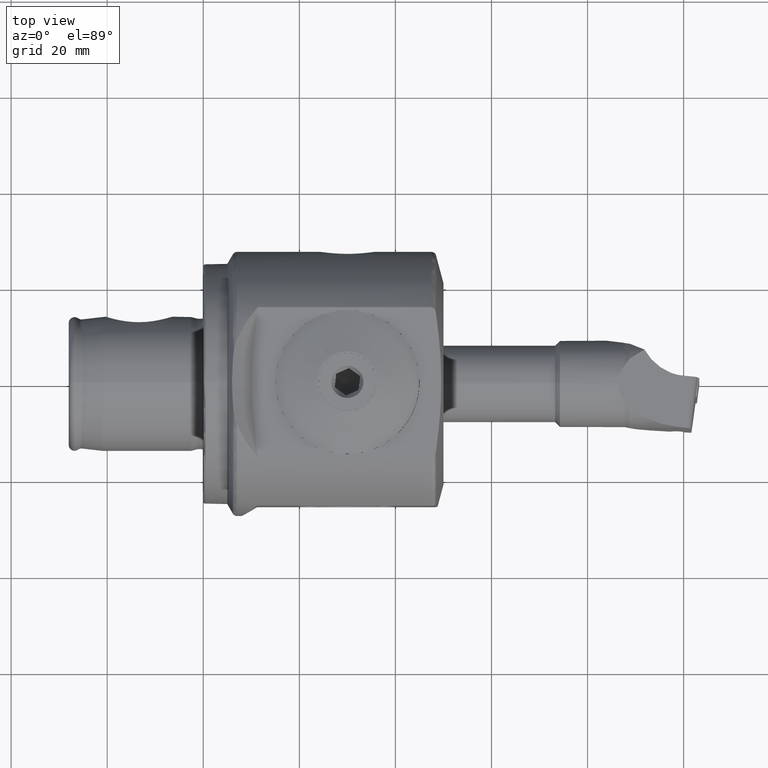
[diagram: clean part render]
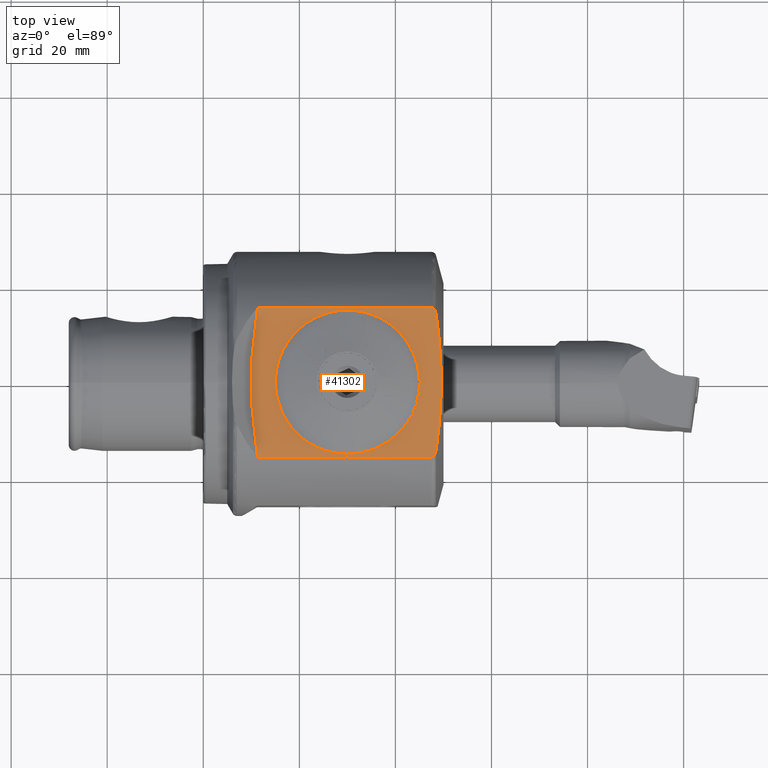
[diagram: same view with one face highlighted and labeled with its STEP entity id]
A machine part, top view. The second image highlights one B-rep face of the part: STEP entity #41302.
In plain terms, the highlighted planar face has unit normal (0, 0, -1).
Its self-contained STEP definition (entity closure, byte-faithful):
#12 = VERTEX_POINT ( 'NONE', #289 ) ;
#154 = CARTESIAN_POINT ( 'NONE',  ( 43.42483683769455600, -6.691319442477644800, 22.64999999999999500 ) ) ;
#231 = LINE ( 'NONE', #24558, #402 ) ;
#289 = CARTESIAN_POINT ( 'NONE',  ( 47.49100326121872900, -15.59575262691737100, 22.64999999999999500 ) ) ;
#402 = VECTOR ( 'NONE', #24324, 1000.000000000000000 ) ;
#465 = DIRECTION ( 'NONE',  ( 0.0000000000000000000, 0.0000000000000000000, 1.000000000000000000 ) ) ;
#491 = VERTEX_POINT ( 'NONE', #41893 ) ;
#503 = ORIENTED_EDGE ( 'NONE', *, *, #22723, .F. ) ;
#654 = VERTEX_POINT ( 'NONE', #18357 ) ;
#671 = CARTESIAN_POINT ( 'NONE',  ( 47.84436095612929300, 15.48563106115336700, 22.65000000000000200 ) ) ;
#692 = ORIENTED_EDGE ( 'NONE', *, *, #23960, .F. ) ;
#861 = ORIENTED_EDGE ( 'NONE', *, *, #28152, .F. ) ;
#1092 = DIRECTION ( 'NONE',  ( 0.9548645447466421700, -0.2970415815770371900, -0.0000000000000000000 ) ) ;
#1128 = CARTESIAN_POINT ( 'NONE',  ( 47.14300556820300200, -5.489978150098639100, 22.64999999999999500 ) ) ;
#1261 = LINE ( 'NONE', #38691, #1391 ) ;
#1391 = VECTOR ( 'NONE', #38531, 1000.000000000000000 ) ;
#1472 = CIRCLE ( 'NONE', #11934, 14.99999999999999600 ) ;
#1535 = CARTESIAN_POINT ( 'NONE',  ( 11.28888806550208700, 15.59575262691737100, 22.64999999999999900 ) ) ;
#1626 = DIRECTION ( 'NONE',  ( -0.7289686274214096700, 0.6845471059286906100, 0.0000000000000000000 ) ) ;
#1776 = CARTESIAN_POINT ( 'NONE',  ( 43.95308598689607700, -12.89704971853190000, 22.64999999999999500 ) ) ;
#1786 = VECTOR ( 'NONE', #36159, 1000.000000000000000 ) ;
#1840 = LINE ( 'NONE', #36530, #1786 ) ;
#2033 = EDGE_CURVE ( 'NONE', #491, #3146, #41501, .T. ) ;
#2149 = VERTEX_POINT ( 'NONE', #15225 ) ;
#2604 = CARTESIAN_POINT ( 'NONE',  ( 105.0000000000000300, 0.0000000000000000000, 22.64999999999999500 ) ) ;
#2765 = CARTESIAN_POINT ( 'NONE',  ( 47.96071895679616400, -15.39236363514097400, 22.64999999999998800 ) ) ;
#3013 = DIRECTION ( 'NONE',  ( -1.000000000000000000, 0.0000000000000000000, 0.0000000000000000000 ) ) ;
#3146 = VERTEX_POINT ( 'NONE', #32489 ) ;
#3692 = DIRECTION ( 'NONE',  ( 0.4371157666508823600, 0.8994052515663956100, 0.0000000000000000000 ) ) ;
#3798 = EDGE_CURVE ( 'NONE', #19159, #33739, #33218, .T. ) ;
#3877 = CIRCLE ( 'NONE', #31917, 14.99999999999999600 ) ;
#3965 = VERTEX_POINT ( 'NONE', #16453 ) ;
#4122 = CARTESIAN_POINT ( 'NONE',  ( 47.64057621404997200, 15.58042764571924700, 22.65000000000000200 ) ) ;
#4318 = LINE ( 'NONE', #1776, #4882 ) ;
#4424 = VERTEX_POINT ( 'NONE', #6962 ) ;
#4582 = VECTOR ( 'NONE', #6583, 1000.000000000000100 ) ;
#4677 = LINE ( 'NONE', #6618, #4582 ) ;
#4725 = CARTESIAN_POINT ( 'NONE',  ( 44.36680824212302100, -4.312171255187546000, 22.64999999999999500 ) ) ;
#4741 = CARTESIAN_POINT ( 'NONE',  ( 47.49100326121872900, 15.59575262691738300, 22.64999999999999500 ) ) ;
#4882 = VECTOR ( 'NONE', #1626, 1000.000000000000000 ) ;
#5102 = CARTESIAN_POINT ( 'NONE',  ( 43.81155581890912000, 15.59575262691737600, 22.64999999999999500 ) ) ;
#5135 = DIRECTION ( 'NONE',  ( 0.0000000000000000000, 0.0000000000000000000, 1.000000000000000000 ) ) ;
#5336 = CARTESIAN_POINT ( 'NONE',  ( 46.12372716319702400, -8.002994587451757600, 22.64999999999999500 ) ) ;
#5797 = EDGE_CURVE ( 'NONE', #654, #22473, #24171, .T. ) ;
#6237 = CARTESIAN_POINT ( 'NONE',  ( 48.10715584696265500, -15.22190722923294200, 22.65000000000001300 ) ) ;
#6317 = VERTEX_POINT ( 'NONE', #10578 ) ;
#6555 = CIRCLE ( 'NONE', #27979, 14.99999999999999600 ) ;
#6583 = DIRECTION ( 'NONE',  ( 0.8235325976284285600, -0.5672689491267547400, 0.0000000000000000000 ) ) ;
#6618 = CARTESIAN_POINT ( 'NONE',  ( 42.26728095716714500, -8.632138664196968800, 22.64999999999999500 ) ) ;
#6962 = CARTESIAN_POINT ( 'NONE',  ( 43.42483683769455600, -6.691319442477644800, 22.64999999999999500 ) ) ;
#7468 = CIRCLE ( 'NONE', #34792, 14.99999999999999600 ) ;
#7641 = CARTESIAN_POINT ( 'NONE',  ( 47.49100326121872900, 15.59575262691738300, 22.64999999999999500 ) ) ;
#7643 = B_SPLINE_CURVE_WITH_KNOTS ( 'NONE', 3,
 ( #18318, #32211, #17456, #28545, #17320, #17282, #17228, #17145, #17137, #17029, #16985, #16929 ),
 .UNSPECIFIED., .F., .F.,
 ( 4, 2, 2, 2, 2, 4 ),
 ( 0.03089536494439691300, 0.03807558197741794900, 0.04525579901043898900, 0.05243601604346002200, 0.05602612455997053900, 0.05961623307648104800 ),
 .UNSPECIFIED. ) ;
#7762 = CARTESIAN_POINT ( 'NONE',  ( 30.15000000000000200, -15.59575262691736900, 22.64999999999998800 ) ) ;
#8183 = CARTESIAN_POINT ( 'NONE',  ( 44.90867709968068800, -10.08731119463735500, 22.64999999999999500 ) ) ;
#8301 = LINE ( 'NONE', #35663, #8394 ) ;
#8394 = VECTOR ( 'NONE', #39462, 1000.000000000000100 ) ;
#8634 = DIRECTION ( 'NONE',  ( -1.000000000000000000, -1.325327650935781300E-016, 0.0000000000000000000 ) ) ;
#9611 = PLANE ( 'NONE',  #17287 ) ;
#9622 = CARTESIAN_POINT ( 'NONE',  ( 47.64228166645210600, -15.59575262691737200, 22.64999999999999500 ) ) ;
#9723 = VECTOR ( 'NONE', #16717, 1000.000000000000000 ) ;
#9760 = DIRECTION ( 'NONE',  ( -1.000000000000000000, 0.0000000000000000000, 0.0000000000000000000 ) ) ;
#9771 = CARTESIAN_POINT ( 'NONE',  ( 48.26082654592120500, -14.96433644549169300, 22.64999999999999100 ) ) ;
#9848 = DIRECTION ( 'NONE',  ( 1.000000000000000000, -1.151748849957387400E-016, 0.0000000000000000000 ) ) ;
#9920 = EDGE_CURVE ( 'NONE', #37926, #31145, #7468, .T. ) ;
#9943 = LINE ( 'NONE', #16730, #9723 ) ;
#10059 = CARTESIAN_POINT ( 'NONE',  ( 44.99924998124905800, -0.1499999999999995200, 22.64999999999999500 ) ) ;
#10578 = CARTESIAN_POINT ( 'NONE',  ( 47.23211804267609900, -5.203518786674640000, 22.64999999999999500 ) ) ;
#11546 = CARTESIAN_POINT ( 'NONE',  ( 47.81826524365054400, -2.555762842462943500, 22.64999999999999500 ) ) ;
#11681 = EDGE_CURVE ( 'NONE', #23340, #32704, #1840, .T. ) ;
#11934 = AXIS2_PLACEMENT_3D ( 'NONE', #26003, #5135, #29660 ) ;
#12019 = CARTESIAN_POINT ( 'NONE',  ( 44.73849641494265200, -10.33437097392589600, 22.64999999999999500 ) ) ;
#12096 = ORIENTED_EDGE ( 'NONE', *, *, #11681, .F. ) ;
#12208 = VERTEX_POINT ( 'NONE', #24776 ) ;
#12222 = EDGE_CURVE ( 'NONE', #23340, #41455, #231, .T. ) ;
#12480 = DIRECTION ( 'NONE',  ( 0.2970415815770037800, 0.9548645447466526100, 0.0000000000000000000 ) ) ;
#12569 = CARTESIAN_POINT ( 'NONE',  ( 47.14300556820300200, -5.489978150098639100, 22.64999999999999500 ) ) ;
#13000 = B_SPLINE_CURVE_WITH_KNOTS ( 'NONE', 3,
 ( #32059, #21252, #14407, #39078, #17855, #42665, #21403, #671, #24967, #4122, #28578, #7641 ),
 .UNSPECIFIED., .F., .F.,
 ( 4, 2, 2, 2, 2, 4 ),
 ( 0.002999204199725494900, 0.003447820772796803000, 0.003896437345868111100, 0.004345053918939419100, 0.004569362205475073100, 0.004793670492010727200 ),
 .UNSPECIFIED. ) ;
#13145 = CARTESIAN_POINT ( 'NONE',  ( 42.43746164190519500, -8.385078884908411500, 22.64999999999999500 ) ) ;
#13196 = CARTESIAN_POINT ( 'NONE',  ( 48.40448994274260700, -14.54257360234960700, 22.65000000000000200 ) ) ;
#13486 = CIRCLE ( 'NONE', #41025, 14.99999999999999600 ) ;
#13578 = ORIENTED_EDGE ( 'NONE', *, *, #12222, .T. ) ;
#13674 = EDGE_CURVE ( 'NONE', #24148, #35469, #40979, .T. ) ;
#13784 = VECTOR ( 'NONE', #45111, 1000.000000000000200 ) ;
#13908 = LINE ( 'NONE', #154, #13784 ) ;
#13945 = ORIENTED_EDGE ( 'NONE', *, *, #16179, .T. ) ;
#14360 = AXIS2_PLACEMENT_3D ( 'NONE', #27118, #27068, #26962 ) ;
#14405 = ORIENTED_EDGE ( 'NONE', *, *, #35149, .T. ) ;
#14407 = CARTESIAN_POINT ( 'NONE',  ( 48.40455036694577700, 14.54239389880361000, 22.64999999999999900 ) ) ;
#14470 = VERTEX_POINT ( 'NONE', #28503 ) ;
#14521 = EDGE_CURVE ( 'NONE', #31209, #29640, #38121, .T. ) ;
#14579 = EDGE_CURVE ( 'NONE', #32704, #31209, #37840, .T. ) ;
#14608 = CARTESIAN_POINT ( 'NONE',  ( 44.99924998124905800, -0.1499999999999995200, 22.64999999999999500 ) ) ;
#15225 = CARTESIAN_POINT ( 'NONE',  ( 49.00000000000000000, 0.1499999999999999900, 22.64999999999999500 ) ) ;
#15528 = DIRECTION ( 'NONE',  ( 0.0000000000000000000, 0.0000000000000000000, 1.000000000000000000 ) ) ;
#15617 = ORIENTED_EDGE ( 'NONE', *, *, #24122, .T. ) ;
#15664 = EDGE_CURVE ( 'NONE', #2149, #37926, #35253, .T. ) ;
#15888 = EDGE_LOOP ( 'NONE', ( #12096, #13578, #13945, #14405, #15617, #15951, #16518, #17592, #17927, #18401, #19529, #20258, #22176, #22585, #23830, #24246, #25838, #26182, #27702, #28118, #29971, #30390, #32098, #32657, #34718, #35235, #36459, #36972, #39152, #39423, #39781, #503, #42435, #44294, #44968, #692, #861 ) ) ;
#15951 = ORIENTED_EDGE ( 'NONE', *, *, #35213, .T. ) ;
#15953 = EDGE_CURVE ( 'NONE', #24968, #2149, #34445, .T. ) ;
#15992 = VERTEX_POINT ( 'NONE', #19734 ) ;
#16179 = EDGE_CURVE ( 'NONE', #41455, #12, #34112, .T. ) ;
#16396 = VERTEX_POINT ( 'NONE', #13145 ) ;
#16453 = CARTESIAN_POINT ( 'NONE',  ( 43.74772185511757500, -13.11574030675839000, 22.64999999999999500 ) ) ;
#16518 = ORIENTED_EDGE ( 'NONE', *, *, #33757, .T. ) ;
#16615 = EDGE_CURVE ( 'NONE', #22473, #24968, #33086, .T. ) ;
#16658 = CARTESIAN_POINT ( 'NONE',  ( 48.45692908750780200, -14.24822433458083500, 22.64999999999999500 ) ) ;
#16717 = DIRECTION ( 'NONE',  ( -0.8235325976284256800, 0.5672689491267590700, 0.0000000000000000000 ) ) ;
#16730 = CARTESIAN_POINT ( 'NONE',  ( 44.90867709968068800, -10.08731119463735500, 22.64999999999999500 ) ) ;
#16824 = CARTESIAN_POINT ( 'NONE',  ( 11.28888806550208700, -15.59575262691736700, 22.64999999999999900 ) ) ;
#16929 = CARTESIAN_POINT ( 'NONE',  ( 48.45692908750780200, 14.24822433458084300, 22.64999999999999500 ) ) ;
#16985 = CARTESIAN_POINT ( 'NONE',  ( 48.62622893642309700, 13.06160801644378300, 22.64999999999999900 ) ) ;
#17029 = CARTESIAN_POINT ( 'NONE',  ( 48.78103594736926900, 11.87014377861352300, 22.65000000000000600 ) ) ;
#17137 = CARTESIAN_POINT ( 'NONE',  ( 49.05310802385383100, 9.489289200791946000, 22.64999999999999500 ) ) ;
#17145 = CARTESIAN_POINT ( 'NONE',  ( 49.17045762810447900, 8.299262086573422800, 22.65000000000000200 ) ) ;
#17228 = CARTESIAN_POINT ( 'NONE',  ( 49.45683379230011700, 4.730587140233854600, 22.64999999999999500 ) ) ;
#17282 = CARTESIAN_POINT ( 'NONE',  ( 49.55848887296527700, 2.353382085316837900, 22.64999999999999100 ) ) ;
#17287 = AXIS2_PLACEMENT_3D ( 'NONE', #2604, #30800, #9760 ) ;
#17320 = CARTESIAN_POINT ( 'NONE',  ( 49.55727325574525100, -2.396648053436249500, 22.64999999999999500 ) ) ;
#17370 = EDGE_CURVE ( 'NONE', #24148, #29640, #30564, .T. ) ;
#17456 = CARTESIAN_POINT ( 'NONE',  ( 49.07243854047128200, -9.511349453100603300, 22.64999999999999100 ) ) ;
#17466 = EDGE_CURVE ( 'NONE', #20246, #654, #29938, .T. ) ;
#17592 = ORIENTED_EDGE ( 'NONE', *, *, #13674, .F. ) ;
#17692 = DIRECTION ( 'NONE',  ( 1.000000000000000000, 1.325327650935781300E-016, -0.0000000000000000000 ) ) ;
#17831 = CARTESIAN_POINT ( 'NONE',  ( 43.81155581890912000, -15.59575262691736700, 22.64999999999999500 ) ) ;
#17855 = CARTESIAN_POINT ( 'NONE',  ( 48.25962053699520000, 14.96657221270183800, 22.64999999999999500 ) ) ;
#17927 = ORIENTED_EDGE ( 'NONE', *, *, #17370, .T. ) ;
#18069 = EDGE_CURVE ( 'NONE', #33266, #20246, #27623, .T. ) ;
#18086 = DIRECTION ( 'NONE',  ( -1.000000000000000000, -9.769962616701376000E-015, 0.0000000000000000000 ) ) ;
#18154 = DIRECTION ( 'NONE',  ( 0.0000000000000000000, 0.0000000000000000000, 1.000000000000000000 ) ) ;
#18199 = CARTESIAN_POINT ( 'NONE',  ( 30.00000000000000000, 0.0000000000000000000, 22.64999999999999500 ) ) ;
#18265 = EDGE_CURVE ( 'NONE', #33739, #33266, #27063, .T. ) ;
#18318 = CARTESIAN_POINT ( 'NONE',  ( 48.45692908750780200, -14.24822433458083500, 22.64999999999999500 ) ) ;
#18357 = CARTESIAN_POINT ( 'NONE',  ( 44.85156850209011700, -2.104973403091962200, 22.64999999999999500 ) ) ;
#18401 = ORIENTED_EDGE ( 'NONE', *, *, #14521, .F. ) ;
#18589 = EDGE_CURVE ( 'NONE', #6317, #19159, #25181, .T. ) ;
#18854 = EDGE_CURVE ( 'NONE', #14470, #6317, #23654, .T. ) ;
#19159 = VERTEX_POINT ( 'NONE', #4725 ) ;
#19187 = EDGE_CURVE ( 'NONE', #3146, #14470, #22261, .T. ) ;
#19371 = VECTOR ( 'NONE', #3692, 1000.000000000000000 ) ;
#19455 = EDGE_CURVE ( 'NONE', #12208, #491, #21071, .T. ) ;
#19529 = ORIENTED_EDGE ( 'NONE', *, *, #14579, .F. ) ;
#19535 = LINE ( 'NONE', #5336, #19371 ) ;
#19565 = DIRECTION ( 'NONE',  ( -0.9548645447466422900, 0.2970415815770371400, 0.0000000000000000000 ) ) ;
#19727 = CARTESIAN_POINT ( 'NONE',  ( 47.23211804267609900, -5.203518786674640000, 22.64999999999999500 ) ) ;
#19734 = CARTESIAN_POINT ( 'NONE',  ( 46.12372716319702400, -8.002994587451757600, 22.64999999999999500 ) ) ;
#19797 = EDGE_CURVE ( 'NONE', #15992, #12208, #19535, .T. ) ;
#19934 = CARTESIAN_POINT ( 'NONE',  ( 43.95308598689607700, -12.89704971853190000, 22.64999999999999500 ) ) ;
#20246 = VERTEX_POINT ( 'NONE', #11546 ) ;
#20258 = ORIENTED_EDGE ( 'NONE', *, *, #27936, .F. ) ;
#20692 = EDGE_CURVE ( 'NONE', #4424, #15992, #13908, .T. ) ;
#20848 = DIRECTION ( 'NONE',  ( 0.7289686274214090000, -0.6845471059286913900, 0.0000000000000000000 ) ) ;
#20906 = CARTESIAN_POINT ( 'NONE',  ( 40.83130060529243400, -10.37703845987819000, 22.64999999999999500 ) ) ;
#21071 = LINE ( 'NONE', #32182, #21118 ) ;
#21118 = VECTOR ( 'NONE', #32967, 1000.000000000000100 ) ;
#21183 = CARTESIAN_POINT ( 'NONE',  ( 30.00000000000000000, 0.0000000000000000000, 22.64999999999999500 ) ) ;
#21252 = CARTESIAN_POINT ( 'NONE',  ( 48.43589989725007400, 14.39561714371154200, 22.64999999999999900 ) ) ;
#21316 = CARTESIAN_POINT ( 'NONE',  ( 42.26728095716714500, -8.632138664196968800, 22.64999999999999500 ) ) ;
#21403 = CARTESIAN_POINT ( 'NONE',  ( 48.01917325693332800, 15.34544482123822300, 22.64999999999999100 ) ) ;
#21579 = EDGE_CURVE ( 'NONE', #33671, #16396, #9943, .T. ) ;
#21791 = DIRECTION ( 'NONE',  ( 0.0000000000000000000, 1.000000000000000000, 0.0000000000000000000 ) ) ;
#21845 = EDGE_CURVE ( 'NONE', #26813, #33671, #8301, .T. ) ;
#22054 = VECTOR ( 'NONE', #1092, 1000.000000000000200 ) ;
#22092 = CARTESIAN_POINT ( 'NONE',  ( 49.00000000000000000, -0.1499999999999999900, 22.64999999999999500 ) ) ;
#22176 = ORIENTED_EDGE ( 'NONE', *, *, #9920, .F. ) ;
#22199 = AXIS2_PLACEMENT_3D ( 'NONE', #18199, #18154, #18086 ) ;
#22261 = LINE ( 'NONE', #1128, #22054 ) ;
#22473 = VERTEX_POINT ( 'NONE', #14608 ) ;
#22585 = ORIENTED_EDGE ( 'NONE', *, *, #15664, .F. ) ;
#22723 = EDGE_CURVE ( 'NONE', #28311, #26813, #4677, .T. ) ;
#22787 = EDGE_CURVE ( 'NONE', #38550, #33660, #4318, .T. ) ;
#23282 = DIRECTION ( 'NONE',  ( -1.000000000000000000, 0.0000000000000000000, 0.0000000000000000000 ) ) ;
#23322 = DIRECTION ( 'NONE',  ( 0.0000000000000000000, 0.0000000000000000000, 1.000000000000000000 ) ) ;
#23336 = EDGE_CURVE ( 'NONE', #3965, #38550, #1261, .T. ) ;
#23340 = VERTEX_POINT ( 'NONE', #38658 ) ;
#23425 = CARTESIAN_POINT ( 'NONE',  ( 30.00000000000000000, 0.0000000000000000000, 22.64999999999999500 ) ) ;
#23525 = VECTOR ( 'NONE', #12480, 1000.000000000000200 ) ;
#23564 = CARTESIAN_POINT ( 'NONE',  ( 47.78552651316599800, -15.53272571557396600, 22.64999999999999500 ) ) ;
#23654 = LINE ( 'NONE', #12569, #23525 ) ;
#23822 = DIRECTION ( 'NONE',  ( 0.0000000000000000000, 0.0000000000000000000, 1.000000000000000000 ) ) ;
#23830 = ORIENTED_EDGE ( 'NONE', *, *, #15953, .F. ) ;
#23960 = EDGE_CURVE ( 'NONE', #41233, #3965, #40536, .T. ) ;
#24122 = EDGE_CURVE ( 'NONE', #29602, #43489, #7643, .T. ) ;
#24148 = VERTEX_POINT ( 'NONE', #16824 ) ;
#24171 = CIRCLE ( 'NONE', #26689, 14.99999999999999600 ) ;
#24246 = ORIENTED_EDGE ( 'NONE', *, *, #16615, .F. ) ;
#24324 = DIRECTION ( 'NONE',  ( 0.0000000000000000000, -1.000000000000000000, -0.0000000000000000000 ) ) ;
#24558 = CARTESIAN_POINT ( 'NONE',  ( 30.15000000000000200, -15.59575262691736900, 22.64999999999998800 ) ) ;
#24605 = DIRECTION ( 'NONE',  ( -1.000000000000000000, 0.0000000000000000000, 0.0000000000000000000 ) ) ;
#24752 = DIRECTION ( 'NONE',  ( -1.000000000000000000, -7.993605777301125500E-015, 0.0000000000000000000 ) ) ;
#24776 = CARTESIAN_POINT ( 'NONE',  ( 46.25486189319228500, -7.733173011981842000, 22.64999999999999500 ) ) ;
#24864 = DIRECTION ( 'NONE',  ( 0.0000000000000000000, 0.0000000000000000000, 1.000000000000000000 ) ) ;
#24951 = VECTOR ( 'NONE', #19565, 1000.000000000000000 ) ;
#24967 = CARTESIAN_POINT ( 'NONE',  ( 47.77929168443527900, 15.52544390615665100, 22.64999999999999500 ) ) ;
#24968 = VERTEX_POINT ( 'NONE', #25185 ) ;
#25062 = CARTESIAN_POINT ( 'NONE',  ( 30.00000000000000000, 0.0000000000000000000, 22.64999999999999500 ) ) ;
#25181 = LINE ( 'NONE', #19727, #24951 ) ;
#25185 = CARTESIAN_POINT ( 'NONE',  ( 49.00000000000000000, -0.1499999999999999900, 22.64999999999999500 ) ) ;
#25793 = CARTESIAN_POINT ( 'NONE',  ( 44.99924998124905800, 0.1499999999999994100, 22.64999999999999500 ) ) ;
#25838 = ORIENTED_EDGE ( 'NONE', *, *, #5797, .F. ) ;
#26003 = CARTESIAN_POINT ( 'NONE',  ( 30.00000000000000000, 0.0000000000000000000, 22.64999999999999500 ) ) ;
#26182 = ORIENTED_EDGE ( 'NONE', *, *, #17466, .F. ) ;
#26256 = B_SPLINE_CURVE_WITH_KNOTS ( 'NONE', 3,
 ( #34150, #9622, #23564, #2765, #27154, #6237, #30812, #9771, #34311, #13196, #37829, #16658 ),
 .UNSPECIFIED., .F., .F.,
 ( 4, 2, 2, 2, 2, 4 ),
 ( 0.009241763701108910600, 0.009687733389517441300, 0.009910718233721698900, 0.01013370307792595600, 0.01057967276633446800, 0.01102564245474297800 ),
 .UNSPECIFIED. ) ;
#26516 = VECTOR ( 'NONE', #30661, 1000.000000000000100 ) ;
#26689 = AXIS2_PLACEMENT_3D ( 'NONE', #27123, #27090, #26922 ) ;
#26813 = VERTEX_POINT ( 'NONE', #12019 ) ;
#26922 = DIRECTION ( 'NONE',  ( -1.000000000000000000, 0.0000000000000000000, 0.0000000000000000000 ) ) ;
#26962 = DIRECTION ( 'NONE',  ( -1.000000000000000000, 0.0000000000000000000, 0.0000000000000000000 ) ) ;
#27063 = LINE ( 'NONE', #30922, #26516 ) ;
#27068 = DIRECTION ( 'NONE',  ( -0.0000000000000000000, -0.0000000000000000000, -1.000000000000000000 ) ) ;
#27090 = DIRECTION ( 'NONE',  ( 0.0000000000000000000, 0.0000000000000000000, 1.000000000000000000 ) ) ;
#27102 = DIRECTION ( 'NONE',  ( -1.000000000000000000, -1.151748849957387400E-016, 0.0000000000000000000 ) ) ;
#27118 = CARTESIAN_POINT ( 'NONE',  ( 105.0000000000000100, 0.0000000000000000000, 22.64999999999999900 ) ) ;
#27123 = CARTESIAN_POINT ( 'NONE',  ( 30.00000000000000000, 0.0000000000000000000, 22.64999999999999500 ) ) ;
#27154 = CARTESIAN_POINT ( 'NONE',  ( 48.01358213005929800, -15.33779125740903700, 22.64999999999999500 ) ) ;
#27310 = CARTESIAN_POINT ( 'NONE',  ( 49.00000000000000000, 0.1499999999999999900, 22.64999999999999500 ) ) ;
#27623 = LINE ( 'NONE', #38921, #27706 ) ;
#27702 = ORIENTED_EDGE ( 'NONE', *, *, #18069, .F. ) ;
#27706 = VECTOR ( 'NONE', #38827, 1000.000000000000100 ) ;
#27797 = DIRECTION ( 'NONE',  ( -0.9886517447379138400, 0.1502255891207580400, -0.0000000000000000000 ) ) ;
#27936 = EDGE_CURVE ( 'NONE', #31145, #32704, #6555, .T. ) ;
#27979 = AXIS2_PLACEMENT_3D ( 'NONE', #36708, #15528, #40292 ) ;
#28118 = ORIENTED_EDGE ( 'NONE', *, *, #18265, .F. ) ;
#28152 = EDGE_CURVE ( 'NONE', #32704, #41233, #3877, .T. ) ;
#28311 = VERTEX_POINT ( 'NONE', #21316 ) ;
#28503 = CARTESIAN_POINT ( 'NONE',  ( 47.14300556820300200, -5.489978150098639100, 22.64999999999999500 ) ) ;
#28545 = CARTESIAN_POINT ( 'NONE',  ( 49.45445599608976300, -4.769474281665472900, 22.64999999999999500 ) ) ;
#28578 = CARTESIAN_POINT ( 'NONE',  ( 47.56536299334671000, 15.59575262691738800, 22.64999999999999500 ) ) ;
#29160 = FACE_OUTER_BOUND ( 'NONE', #15888, .T. ) ;
#29472 = CARTESIAN_POINT ( 'NONE',  ( 44.80650082535389300, -2.401568926513337300, 22.64999999999999500 ) ) ;
#29602 = VERTEX_POINT ( 'NONE', #32571 ) ;
#29640 = VERTEX_POINT ( 'NONE', #43319 ) ;
#29660 = DIRECTION ( 'NONE',  ( -1.000000000000000000, 0.0000000000000000000, 0.0000000000000000000 ) ) ;
#29938 = LINE ( 'NONE', #41127, #30107 ) ;
#29971 = ORIENTED_EDGE ( 'NONE', *, *, #3798, .F. ) ;
#30107 = VECTOR ( 'NONE', #27797, 1000.000000000000100 ) ;
#30390 = ORIENTED_EDGE ( 'NONE', *, *, #18589, .F. ) ;
#30437 = VECTOR ( 'NONE', #36566, 1000.000000000000000 ) ;
#30564 = LINE ( 'NONE', #38195, #30437 ) ;
#30661 = DIRECTION ( 'NONE',  ( 0.9886517447379138400, -0.1502255891207576700, -0.0000000000000000000 ) ) ;
#30800 = DIRECTION ( 'NONE',  ( -0.0000000000000000000, 0.0000000000000000000, -1.000000000000000000 ) ) ;
#30812 = CARTESIAN_POINT ( 'NONE',  ( 48.14864791000566400, -15.15988416712363000, 22.64999999999999900 ) ) ;
#30922 = CARTESIAN_POINT ( 'NONE',  ( 47.77319756691431300, -2.852358365884317200, 22.64999999999999500 ) ) ;
#31145 = VERTEX_POINT ( 'NONE', #35380 ) ;
#31209 = VERTEX_POINT ( 'NONE', #39080 ) ;
#31547 = EDGE_CURVE ( 'NONE', #33660, #28311, #13486, .T. ) ;
#31917 = AXIS2_PLACEMENT_3D ( 'NONE', #45064, #23822, #3013 ) ;
#32059 = CARTESIAN_POINT ( 'NONE',  ( 48.45692908750780200, 14.24822433458084300, 22.64999999999999500 ) ) ;
#32098 = ORIENTED_EDGE ( 'NONE', *, *, #18854, .F. ) ;
#32182 = CARTESIAN_POINT ( 'NONE',  ( 46.25486189319228500, -7.733173011981842000, 22.64999999999999500 ) ) ;
#32211 = CARTESIAN_POINT ( 'NONE',  ( 48.79475276043024900, -11.88043082790506600, 22.64999999999999900 ) ) ;
#32489 = CARTESIAN_POINT ( 'NONE',  ( 44.27769576764991700, -4.598630618611538000, 22.64999999999999500 ) ) ;
#32571 = CARTESIAN_POINT ( 'NONE',  ( 48.45692908750780200, -14.24822433458083500, 22.64999999999999500 ) ) ;
#32657 = ORIENTED_EDGE ( 'NONE', *, *, #19187, .F. ) ;
#32704 = VERTEX_POINT ( 'NONE', #35648 ) ;
#32741 = CARTESIAN_POINT ( 'NONE',  ( 41.03666473707103500, -10.15834787165179500, 22.64999999999999500 ) ) ;
#32857 = VECTOR ( 'NONE', #9848, 1000.000000000000000 ) ;
#32967 = DIRECTION ( 'NONE',  ( -0.8994052515663703000, 0.4371157666509343200, 0.0000000000000000000 ) ) ;
#33086 = LINE ( 'NONE', #10059, #32857 ) ;
#33218 = CIRCLE ( 'NONE', #22199, 14.99999999999999600 ) ;
#33266 = VERTEX_POINT ( 'NONE', #44616 ) ;
#33660 = VERTEX_POINT ( 'NONE', #32741 ) ;
#33671 = VERTEX_POINT ( 'NONE', #8183 ) ;
#33726 = VECTOR ( 'NONE', #17692, 1000.000000000000000 ) ;
#33739 = VERTEX_POINT ( 'NONE', #29472 ) ;
#33757 = EDGE_CURVE ( 'NONE', #34638, #35469, #36141, .T. ) ;
#34112 = LINE ( 'NONE', #17831, #33726 ) ;
#34150 = CARTESIAN_POINT ( 'NONE',  ( 47.49100326121872900, -15.59575262691737100, 22.64999999999999500 ) ) ;
#34245 = VECTOR ( 'NONE', #21791, 1000.000000000000000 ) ;
#34311 = CARTESIAN_POINT ( 'NONE',  ( 48.31684604429064200, -14.82640688855472000, 22.64999999999999500 ) ) ;
#34445 = LINE ( 'NONE', #22092, #34245 ) ;
#34638 = VERTEX_POINT ( 'NONE', #4741 ) ;
#34718 = ORIENTED_EDGE ( 'NONE', *, *, #2033, .F. ) ;
#34792 = AXIS2_PLACEMENT_3D ( 'NONE', #23425, #23322, #23282 ) ;
#35064 = VECTOR ( 'NONE', #8634, 1000.000000000000000 ) ;
#35149 = EDGE_CURVE ( 'NONE', #12, #29602, #26256, .T. ) ;
#35213 = EDGE_CURVE ( 'NONE', #43489, #34638, #13000, .T. ) ;
#35235 = ORIENTED_EDGE ( 'NONE', *, *, #19455, .F. ) ;
#35253 = LINE ( 'NONE', #27310, #35333 ) ;
#35333 = VECTOR ( 'NONE', #27102, 1000.000000000000000 ) ;
#35380 = CARTESIAN_POINT ( 'NONE',  ( 15.00000000000000400, 1.836970198721029200E-015, 22.64999999999999500 ) ) ;
#35469 = VERTEX_POINT ( 'NONE', #1535 ) ;
#35648 = CARTESIAN_POINT ( 'NONE',  ( 30.00000000000000000, -14.99999999999999300, 22.64999999999998800 ) ) ;
#35663 = CARTESIAN_POINT ( 'NONE',  ( 44.73849641494265200, -10.33437097392589600, 22.64999999999999500 ) ) ;
#36141 = LINE ( 'NONE', #5102, #35064 ) ;
#36159 = DIRECTION ( 'NONE',  ( -1.000000000000000000, -0.0000000000000000000, -0.0000000000000000000 ) ) ;
#36459 = ORIENTED_EDGE ( 'NONE', *, *, #19797, .F. ) ;
#36530 = CARTESIAN_POINT ( 'NONE',  ( 30.15000000000000200, -14.99999999999999300, 22.64999999999998800 ) ) ;
#36566 = DIRECTION ( 'NONE',  ( 1.000000000000000000, 1.325327650935781300E-016, -0.0000000000000000000 ) ) ;
#36708 = CARTESIAN_POINT ( 'NONE',  ( 30.00000000000000000, 0.0000000000000000000, 22.64999999999999500 ) ) ;
#36972 = ORIENTED_EDGE ( 'NONE', *, *, #20692, .F. ) ;
#37001 = AXIS2_PLACEMENT_3D ( 'NONE', #25062, #24864, #24605 ) ;
#37341 = EDGE_CURVE ( 'NONE', #16396, #4424, #1472, .T. ) ;
#37796 = VECTOR ( 'NONE', #44545, 1000.000000000000000 ) ;
#37829 = CARTESIAN_POINT ( 'NONE',  ( 48.43595858815073300, -14.39520578138141500, 22.64999999999999900 ) ) ;
#37840 = LINE ( 'NONE', #44458, #37796 ) ;
#37926 = VERTEX_POINT ( 'NONE', #25793 ) ;
#38032 = VECTOR ( 'NONE', #45022, 1000.000000000000000 ) ;
#38121 = LINE ( 'NONE', #45436, #38032 ) ;
#38195 = CARTESIAN_POINT ( 'NONE',  ( 43.81155581890912000, -15.59575262691736700, 22.64999999999999500 ) ) ;
#38531 = DIRECTION ( 'NONE',  ( 0.6845471059283835300, 0.7289686274216981000, 0.0000000000000000000 ) ) ;
#38550 = VERTEX_POINT ( 'NONE', #19934 ) ;
#38658 = CARTESIAN_POINT ( 'NONE',  ( 30.15000000000000200, -14.99999999999999300, 22.64999999999998800 ) ) ;
#38691 = CARTESIAN_POINT ( 'NONE',  ( 43.74772185511757500, -13.11574030675839000, 22.64999999999999500 ) ) ;
#38827 = DIRECTION ( 'NONE',  ( 0.1502255891207743600, 0.9886517447379114000, -0.0000000000000000000 ) ) ;
#38921 = CARTESIAN_POINT ( 'NONE',  ( 47.81826524365054400, -2.555762842462943500, 22.64999999999999500 ) ) ;
#39078 = CARTESIAN_POINT ( 'NONE',  ( 48.31673948720558800, 14.82673598426789700, 22.64999999999999100 ) ) ;
#39080 = CARTESIAN_POINT ( 'NONE',  ( 29.85000000000000100, -14.99999999999999300, 22.64999999999998800 ) ) ;
#39152 = ORIENTED_EDGE ( 'NONE', *, *, #37341, .F. ) ;
#39423 = ORIENTED_EDGE ( 'NONE', *, *, #21579, .F. ) ;
#39462 = DIRECTION ( 'NONE',  ( 0.5672689491267575200, 0.8235325976284267900, 0.0000000000000000000 ) ) ;
#39781 = ORIENTED_EDGE ( 'NONE', *, *, #21845, .F. ) ;
#40292 = DIRECTION ( 'NONE',  ( -1.000000000000000000, 0.0000000000000000000, 0.0000000000000000000 ) ) ;
#40536 = LINE ( 'NONE', #20906, #41596 ) ;
#40979 = CIRCLE ( 'NONE', #14360, 95.00000000000000000 ) ;
#41025 = AXIS2_PLACEMENT_3D ( 'NONE', #21183, #465, #24752 ) ;
#41127 = CARTESIAN_POINT ( 'NONE',  ( 44.85156850209011700, -2.104973403091961300, 22.64999999999999500 ) ) ;
#41233 = VERTEX_POINT ( 'NONE', #44489 ) ;
#41302 = ADVANCED_FACE ( 'NONE', ( #29160 ), #9611, .F. ) ;
#41455 = VERTEX_POINT ( 'NONE', #7762 ) ;
#41501 = CIRCLE ( 'NONE', #37001, 14.99999999999999600 ) ;
#41596 = VECTOR ( 'NONE', #20848, 1000.000000000000000 ) ;
#41804 = CARTESIAN_POINT ( 'NONE',  ( 48.45692908750780200, 14.24822433458084300, 22.64999999999999500 ) ) ;
#41893 = CARTESIAN_POINT ( 'NONE',  ( 43.55597156768982400, -6.421497867007735400, 22.64999999999999500 ) ) ;
#42435 = ORIENTED_EDGE ( 'NONE', *, *, #31547, .F. ) ;
#42665 = CARTESIAN_POINT ( 'NONE',  ( 48.11173540350732500, 15.22409523369885100, 22.65000000000000200 ) ) ;
#43319 = CARTESIAN_POINT ( 'NONE',  ( 29.85000000000000100, -15.59575262691736900, 22.64999999999999500 ) ) ;
#43489 = VERTEX_POINT ( 'NONE', #41804 ) ;
#44294 = ORIENTED_EDGE ( 'NONE', *, *, #22787, .F. ) ;
#44458 = CARTESIAN_POINT ( 'NONE',  ( 30.15000000000000200, -14.99999999999999300, 22.64999999999998800 ) ) ;
#44489 = CARTESIAN_POINT ( 'NONE',  ( 40.83130060529243400, -10.37703845987819000, 22.64999999999999500 ) ) ;
#44545 = DIRECTION ( 'NONE',  ( -1.000000000000000000, -0.0000000000000000000, -0.0000000000000000000 ) ) ;
#44616 = CARTESIAN_POINT ( 'NONE',  ( 47.77319756691431300, -2.852358365884317200, 22.64999999999999500 ) ) ;
#44968 = ORIENTED_EDGE ( 'NONE', *, *, #23336, .F. ) ;
#45022 = DIRECTION ( 'NONE',  ( 0.0000000000000000000, -1.000000000000000000, -0.0000000000000000000 ) ) ;
#45064 = CARTESIAN_POINT ( 'NONE',  ( 30.00000000000000000, 0.0000000000000000000, 22.64999999999999500 ) ) ;
#45111 = DIRECTION ( 'NONE',  ( 0.8994052515663708600, -0.4371157666509333800, 0.0000000000000000000 ) ) ;
#45436 = CARTESIAN_POINT ( 'NONE',  ( 29.85000000000000100, -15.59575262691736900, 22.64999999999998800 ) ) ;